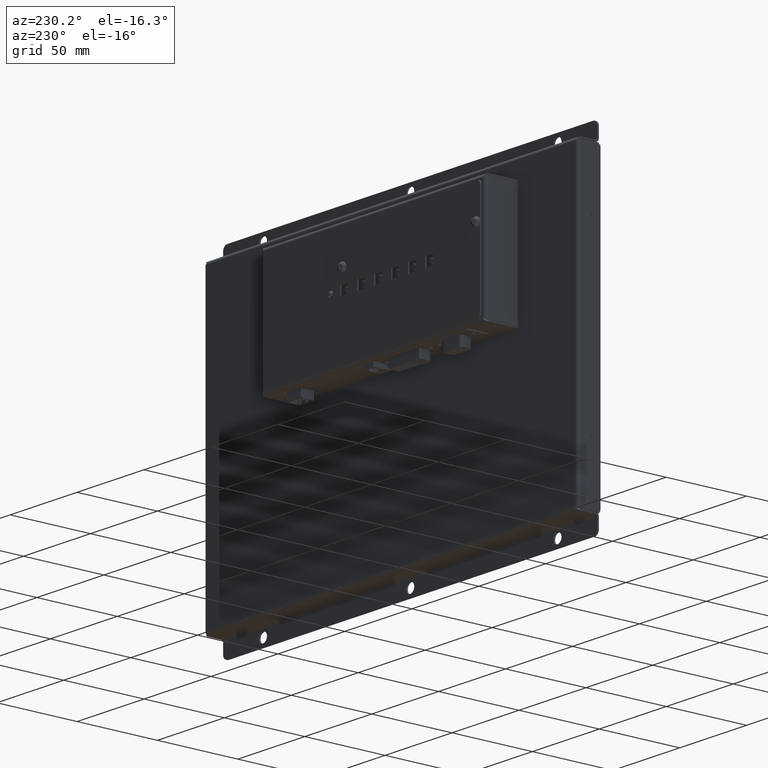
[diagram: clean part render]
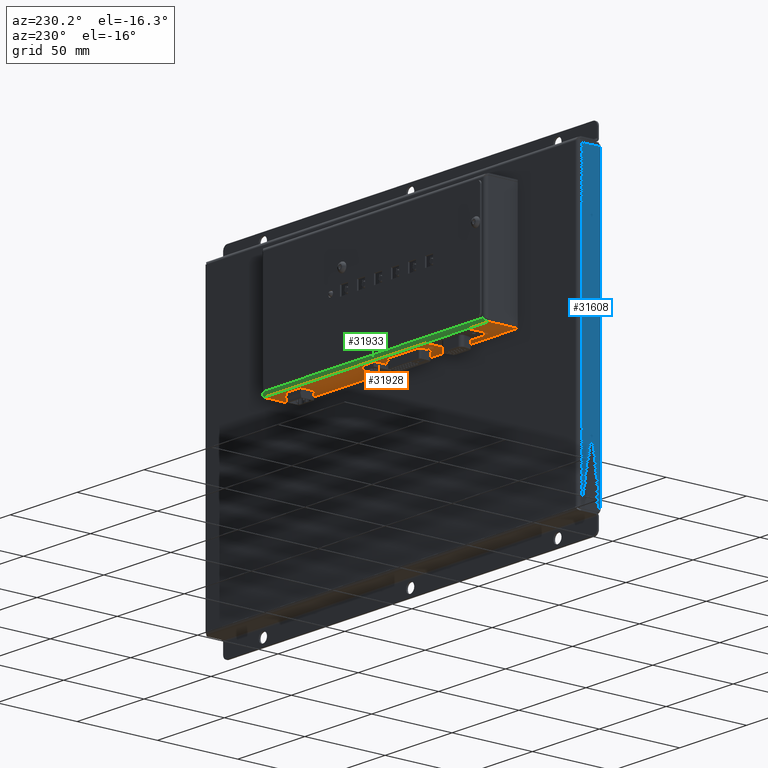
[diagram: same view with three faces highlighted in distinct colors, each labeled with its STEP entity id]
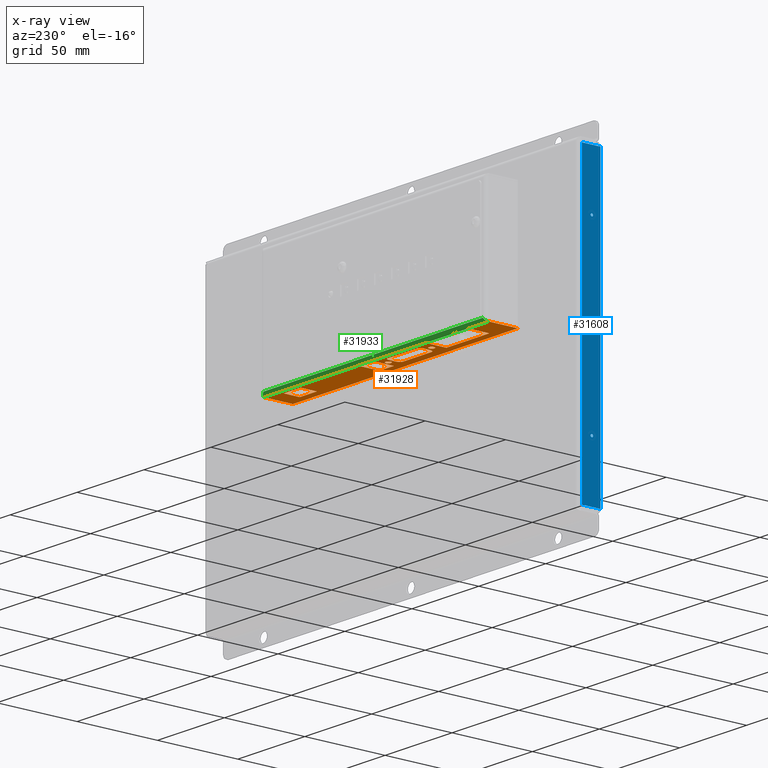
[diagram: x-ray of the same camera — body ghosted, the three highlighted faces saturated]
A machine part, auxiliary view with three faces highlighted in distinct colors.
The next image is the same camera in x-ray (body ghosted, the three faces saturated) — at least one of them is partly hidden behind the body in this view.
Their STEP definitions:

[orange] entity #31928 — the highlighted planar face has unit normal (0, -0, 1).
#842=FACE_BOUND('',#5820,.T.);
#843=FACE_BOUND('',#5821,.T.);
#844=FACE_BOUND('',#5822,.T.);
#845=FACE_BOUND('',#5823,.T.);
#846=FACE_BOUND('',#5824,.T.);
#847=FACE_BOUND('',#5825,.T.);
#1829=PLANE('',#34987);
#3898=FACE_OUTER_BOUND('',#5819,.T.);
#5819=EDGE_LOOP('',(#27745,#27746,#27747,#27748));
#5820=EDGE_LOOP('',(#27749,#27750,#27751,#27752));
#5821=EDGE_LOOP('',(#27753,#27754));
#5822=EDGE_LOOP('',(#27755,#27756));
#5823=EDGE_LOOP('',(#27757,#27758,#27759,#27760));
#5824=EDGE_LOOP('',(#27761,#27762,#27763,#27764));
#5825=EDGE_LOOP('',(#27765,#27766,#27767,#27768,#27769,#27770,#27771,#27772,
#27773,#27774,#27775,#27776));
#8593=LINE('',#53797,#11512);
#8597=LINE('',#53805,#11516);
#8600=LINE('',#53811,#11519);
#8603=LINE('',#53816,#11522);
#8609=LINE('',#53861,#11528);
#8613=LINE('',#53869,#11532);
#8616=LINE('',#53875,#11535);
#8619=LINE('',#53880,#11538);
#8621=LINE('',#53885,#11540);
#8625=LINE('',#53893,#11544);
#8628=LINE('',#53899,#11547);
#8631=LINE('',#53904,#11550);
#8633=LINE('',#53909,#11552);
#8638=LINE('',#53923,#11557);
#8642=LINE('',#53935,#11561);
#8646=LINE('',#53947,#11565);
#8650=LINE('',#53959,#11569);
#8654=LINE('',#53971,#11573);
#8676=LINE('',#54139,#11595);
#8677=LINE('',#54141,#11596);
#8678=LINE('',#54143,#11597);
#8679=LINE('',#54144,#11598);
#11512=VECTOR('',#42411,10.);
#11516=VECTOR('',#42417,10.);
#11519=VECTOR('',#42422,10.);
#11522=VECTOR('',#42427,10.);
#11528=VECTOR('',#42475,10.);
#11532=VECTOR('',#42481,10.);
#11535=VECTOR('',#42486,10.);
#11538=VECTOR('',#42491,10.);
#11540=VECTOR('',#42495,10.);
#11544=VECTOR('',#42501,10.);
#11547=VECTOR('',#42506,10.);
#11550=VECTOR('',#42511,10.);
#11552=VECTOR('',#42515,10.);
#11557=VECTOR('',#42528,10.);
#11561=VECTOR('',#42540,10.);
#11565=VECTOR('',#42552,10.);
#11569=VECTOR('',#42564,10.);
#11573=VECTOR('',#42576,10.);
#11595=VECTOR('',#42618,10.);
#11596=VECTOR('',#42619,10.);
#11597=VECTOR('',#42620,10.);
#11598=VECTOR('',#42621,10.);
#12950=CIRCLE('',#34930,1.7);
#12951=CIRCLE('',#34931,1.7);
#12954=CIRCLE('',#34935,1.7);
#12955=CIRCLE('',#34936,1.7);
#12966=CIRCLE('',#34959,1.79999999997063);
#12968=CIRCLE('',#34963,1.79999999997063);
#12970=CIRCLE('',#34967,1.79999999997063);
#12972=CIRCLE('',#34971,1.79999999997063);
#12974=CIRCLE('',#34975,1.79999999997063);
#12976=CIRCLE('',#34979,1.79999999997063);
#15574=VERTEX_POINT('',#53795);
#15575=VERTEX_POINT('',#53796);
#15578=VERTEX_POINT('',#53804);
#15580=VERTEX_POINT('',#53810);
#15582=VERTEX_POINT('',#53819);
#15583=VERTEX_POINT('',#53820);
#15586=VERTEX_POINT('',#53829);
#15587=VERTEX_POINT('',#53830);
#15598=VERTEX_POINT('',#53859);
#15599=VERTEX_POINT('',#53860);
#15602=VERTEX_POINT('',#53868);
#15604=VERTEX_POINT('',#53874);
#15606=VERTEX_POINT('',#53883);
#15607=VERTEX_POINT('',#53884);
#15610=VERTEX_POINT('',#53892);
#15612=VERTEX_POINT('',#53898);
#15614=VERTEX_POINT('',#53907);
#15615=VERTEX_POINT('',#53908);
#15618=VERTEX_POINT('',#53916);
#15620=VERTEX_POINT('',#53922);
#15622=VERTEX_POINT('',#53928);
#15624=VERTEX_POINT('',#53934);
#15626=VERTEX_POINT('',#53940);
#15628=VERTEX_POINT('',#53946);
#15630=VERTEX_POINT('',#53952);
#15632=VERTEX_POINT('',#53958);
#15634=VERTEX_POINT('',#53964);
#15636=VERTEX_POINT('',#53970);
#15656=VERTEX_POINT('',#54137);
#15657=VERTEX_POINT('',#54138);
#15658=VERTEX_POINT('',#54140);
#15659=VERTEX_POINT('',#54142);
#19664=EDGE_CURVE('',#15574,#15575,#8593,.T.);
#19668=EDGE_CURVE('',#15578,#15574,#8597,.T.);
#19671=EDGE_CURVE('',#15580,#15578,#8600,.T.);
#19674=EDGE_CURVE('',#15575,#15580,#8603,.T.);
#19676=EDGE_CURVE('',#15582,#15583,#12950,.T.);
#19677=EDGE_CURVE('',#15583,#15582,#12951,.T.);
#19681=EDGE_CURVE('',#15586,#15587,#12954,.T.);
#19682=EDGE_CURVE('',#15587,#15586,#12955,.T.);
#19696=EDGE_CURVE('',#15598,#15599,#8609,.T.);
#19700=EDGE_CURVE('',#15602,#15598,#8613,.T.);
#19703=EDGE_CURVE('',#15604,#15602,#8616,.T.);
#19706=EDGE_CURVE('',#15599,#15604,#8619,.T.);
#19708=EDGE_CURVE('',#15606,#15607,#8621,.T.);
#19712=EDGE_CURVE('',#15610,#15606,#8625,.T.);
#19715=EDGE_CURVE('',#15612,#15610,#8628,.T.);
#19718=EDGE_CURVE('',#15607,#15612,#8631,.T.);
#19720=EDGE_CURVE('',#15614,#15615,#8633,.T.);
#19724=EDGE_CURVE('',#15618,#15614,#12966,.T.);
#19727=EDGE_CURVE('',#15620,#15618,#8638,.T.);
#19730=EDGE_CURVE('',#15622,#15620,#12968,.T.);
#19733=EDGE_CURVE('',#15624,#15622,#8642,.T.);
#19736=EDGE_CURVE('',#15626,#15624,#12970,.T.);
#19739=EDGE_CURVE('',#15628,#15626,#8646,.T.);
#19742=EDGE_CURVE('',#15630,#15628,#12972,.T.);
#19745=EDGE_CURVE('',#15632,#15630,#8650,.T.);
#19748=EDGE_CURVE('',#15634,#15632,#12974,.T.);
#19751=EDGE_CURVE('',#15636,#15634,#8654,.T.);
#19754=EDGE_CURVE('',#15615,#15636,#12976,.T.);
#19782=EDGE_CURVE('',#15656,#15657,#8676,.T.);
#19783=EDGE_CURVE('',#15658,#15657,#8677,.T.);
#19784=EDGE_CURVE('',#15659,#15658,#8678,.T.);
#19785=EDGE_CURVE('',#15656,#15659,#8679,.T.);
#27745=ORIENTED_EDGE('',*,*,#19782,.T.);
#27746=ORIENTED_EDGE('',*,*,#19783,.F.);
#27747=ORIENTED_EDGE('',*,*,#19784,.F.);
#27748=ORIENTED_EDGE('',*,*,#19785,.F.);
#27749=ORIENTED_EDGE('',*,*,#19664,.T.);
#27750=ORIENTED_EDGE('',*,*,#19674,.T.);
#27751=ORIENTED_EDGE('',*,*,#19671,.T.);
#27752=ORIENTED_EDGE('',*,*,#19668,.T.);
#27753=ORIENTED_EDGE('',*,*,#19676,.T.);
#27754=ORIENTED_EDGE('',*,*,#19677,.T.);
#27755=ORIENTED_EDGE('',*,*,#19681,.T.);
#27756=ORIENTED_EDGE('',*,*,#19682,.T.);
#27757=ORIENTED_EDGE('',*,*,#19696,.T.);
#27758=ORIENTED_EDGE('',*,*,#19706,.T.);
#27759=ORIENTED_EDGE('',*,*,#19703,.T.);
#27760=ORIENTED_EDGE('',*,*,#19700,.T.);
#27761=ORIENTED_EDGE('',*,*,#19708,.T.);
#27762=ORIENTED_EDGE('',*,*,#19718,.T.);
#27763=ORIENTED_EDGE('',*,*,#19715,.T.);
#27764=ORIENTED_EDGE('',*,*,#19712,.T.);
#27765=ORIENTED_EDGE('',*,*,#19720,.T.);
#27766=ORIENTED_EDGE('',*,*,#19754,.T.);
#27767=ORIENTED_EDGE('',*,*,#19751,.T.);
#27768=ORIENTED_EDGE('',*,*,#19748,.T.);
#27769=ORIENTED_EDGE('',*,*,#19745,.T.);
#27770=ORIENTED_EDGE('',*,*,#19742,.T.);
#27771=ORIENTED_EDGE('',*,*,#19739,.T.);
#27772=ORIENTED_EDGE('',*,*,#19736,.T.);
#27773=ORIENTED_EDGE('',*,*,#19733,.T.);
#27774=ORIENTED_EDGE('',*,*,#19730,.T.);
#27775=ORIENTED_EDGE('',*,*,#19727,.T.);
#27776=ORIENTED_EDGE('',*,*,#19724,.T.);
#31928=ADVANCED_FACE('',(#3898,#842,#843,#844,#845,#846,#847),#1829,.F.);
#34930=AXIS2_PLACEMENT_3D('',#53821,#42431,#42432);
#34931=AXIS2_PLACEMENT_3D('',#53822,#42433,#42434);
#34935=AXIS2_PLACEMENT_3D('',#53831,#42442,#42443);
#34936=AXIS2_PLACEMENT_3D('',#53832,#42444,#42445);
#34959=AXIS2_PLACEMENT_3D('',#53917,#42521,#42522);
#34963=AXIS2_PLACEMENT_3D('',#53929,#42533,#42534);
#34967=AXIS2_PLACEMENT_3D('',#53941,#42545,#42546);
#34971=AXIS2_PLACEMENT_3D('',#53953,#42557,#42558);
#34975=AXIS2_PLACEMENT_3D('',#53965,#42569,#42570);
#34979=AXIS2_PLACEMENT_3D('',#53976,#42581,#42582);
#34987=AXIS2_PLACEMENT_3D('',#54136,#42616,#42617);
#42411=DIRECTION('',(-3.41607084500048E-16,1.74780852069339E-15,1.));
#42417=DIRECTION('',(-1.,-1.94356808492835E-16,1.22514845490862E-16));
#42422=DIRECTION('',(4.04163561191626E-33,-1.74780852069339E-15,-1.));
#42427=DIRECTION('',(1.,1.94356808492835E-16,-3.35656850326634E-31));
#42431=DIRECTION('center_axis',(-1.94356808492835E-16,1.,-1.74780852069339E-15));
#42432=DIRECTION('ref_axis',(1.,1.94356808492835E-16,-3.35656850326634E-31));
#42433=DIRECTION('center_axis',(-1.94356808492835E-16,1.,-1.74780852069339E-15));
#42434=DIRECTION('ref_axis',(1.,1.94356808492835E-16,-3.35656850326634E-31));
#42442=DIRECTION('center_axis',(-1.94356808492835E-16,1.,-1.74780852069339E-15));
#42443=DIRECTION('ref_axis',(1.,1.94356808492835E-16,-3.35656850326634E-31));
#42444=DIRECTION('center_axis',(-1.94356808492835E-16,1.,-1.74780852069339E-15));
#42445=DIRECTION('ref_axis',(1.,1.94356808492835E-16,-3.35656850326634E-31));
#42475=DIRECTION('',(4.04163561191626E-33,-1.74780852069339E-15,-1.));
#42481=DIRECTION('',(1.,1.94356808492836E-16,3.52451753847177E-16));
#42486=DIRECTION('',(-4.04163561191626E-33,1.74780852069339E-15,1.));
#42491=DIRECTION('',(-1.,-1.94356808492835E-16,-1.76225876923588E-16));
#42495=DIRECTION('',(7.40148683083437E-15,1.74780852069339E-15,1.));
#42501=DIRECTION('',(-1.,-1.94356808492821E-16,7.6720600522445E-15));
#42506=DIRECTION('',(-2.96059473233375E-15,-1.74780852069339E-15,-1.));
#42511=DIRECTION('',(1.,1.9435680849282E-16,-8.58851773766624E-15));
#42515=DIRECTION('',(-1.,-1.94356808496081E-16,-1.8572927529593E-12));
#42521=DIRECTION('center_axis',(-1.94356808492835E-16,1.,-1.74780852069339E-15));
#42522=DIRECTION('ref_axis',(-1.86024035684672E-12,1.66533453693773E-15,
1.));
#42528=DIRECTION('',(2.03633514054383E-10,-1.74780852065381E-15,-1.));
#42533=DIRECTION('center_axis',(-1.94356808492835E-16,1.,-1.74780852069339E-15));
#42534=DIRECTION('ref_axis',(-1.,-3.09278670007711E-27,-1.85715640400049E-12));
#42540=DIRECTION('',(0.447213673012302,-1.4763683756301E-15,-0.89442715224374));
#42545=DIRECTION('center_axis',(-1.94356808492835E-16,1.,-1.74780852069339E-15));
#42546=DIRECTION('ref_axis',(-0.89442715224374,-7.44760375058162E-16,-0.4472136730123));
#42552=DIRECTION('',(1.,1.94356808496081E-16,1.85748235760231E-12));
#42557=DIRECTION('center_axis',(-1.94356808492835E-16,1.,-1.74780852069339E-15));
#42558=DIRECTION('ref_axis',(1.85530603229275E-12,-1.66533453693773E-15,
-1.));
#42564=DIRECTION('',(0.447213595496917,1.65020647270755E-15,0.894427191001437));
#42569=DIRECTION('center_axis',(-1.94356808492835E-16,1.,-1.74780852069339E-15));
#42570=DIRECTION('ref_axis',(0.894427191001434,-7.44760245969126E-16,-0.447213595496922));
#42576=DIRECTION('',(-1.85566253275408E-12,1.74780852069303E-15,1.));
#42581=DIRECTION('center_axis',(-1.94356808492835E-16,1.,-1.74780852069339E-15));
#42582=DIRECTION('ref_axis',(1.,3.09278670007711E-27,1.85715640400048E-12));
#42616=DIRECTION('center_axis',(-1.94356808492835E-16,1.,-1.74780852069339E-15));
#42617=DIRECTION('ref_axis',(1.,1.94356808492835E-16,1.32169407693471E-16));
#42618=DIRECTION('',(1.,1.94356808492835E-16,-1.06659134667663E-31));
#42619=DIRECTION('',(-7.72105202801893E-15,-4.84414241523454E-15,-1.));
#42620=DIRECTION('',(1.,2.11471052309554E-16,2.64338815386941E-17));
#42621=DIRECTION('',(-2.2186712959341E-31,1.71512449944288E-15,1.));
#53795=CARTESIAN_POINT('',(-68.6749999999858,-37.,2.0200000000709));
#53796=CARTESIAN_POINT('',(-68.6749999999858,-37.,15.0200000000709));
#53797=CARTESIAN_POINT('',(-68.6749999999858,-37.,5.94451332238927));
#53804=CARTESIAN_POINT('',(-36.6749999999858,-37.,2.02000000007089));
#53805=CARTESIAN_POINT('',(-18.3374999999929,-37.,2.02000000007089));
#53810=CARTESIAN_POINT('',(-36.6749999999858,-37.,15.0200000000709));
#53811=CARTESIAN_POINT('',(-36.6749999999858,-37.,12.4445133223893));
#53816=CARTESIAN_POINT('',(-34.3374999999929,-37.,15.0200000000709));
#53819=CARTESIAN_POINT('',(1.9749999972605,-37.,9.60000000003014));
#53820=CARTESIAN_POINT('',(-1.4250000027395,-37.,9.60000000003014));
#53821=CARTESIAN_POINT('Origin',(0.274999997260501,-37.,9.60000000003014));
#53822=CARTESIAN_POINT('Origin',(0.274999997260501,-37.,9.60000000003014));
#53829=CARTESIAN_POINT('',(-30.4750000027398,-37.,9.59999999996987));
#53830=CARTESIAN_POINT('',(-33.8750000027398,-37.,9.59999999996987));
#53831=CARTESIAN_POINT('Origin',(-32.1750000027398,-37.,9.59999999996987));
#53832=CARTESIAN_POINT('Origin',(-32.1750000027398,-37.,9.59999999996987));
#53859=CARTESIAN_POINT('',(72.8000000000382,-37.,15.0000000000358));
#53860=CARTESIAN_POINT('',(72.8000000000382,-37.,4.99999999996151));
#53861=CARTESIAN_POINT('',(72.8000000000382,-37.,12.4345133223717));
#53868=CARTESIAN_POINT('',(60.1999999999639,-37.,15.0000000000358));
#53869=CARTESIAN_POINT('',(30.0999999999819,-37.,15.0000000000358));
#53874=CARTESIAN_POINT('',(60.1999999999639,-37.,4.99999999996151));
#53875=CARTESIAN_POINT('',(60.1999999999639,-37.,7.43451332233459));
#53880=CARTESIAN_POINT('',(36.4000000000191,-37.,4.9999999999615));
#53883=CARTESIAN_POINT('',(3.20000000000061,-37.,3.49999999999914));
#53884=CARTESIAN_POINT('',(3.2000000000007,-37.,15.4999999999992));
#53885=CARTESIAN_POINT('',(3.20000000000063,-37.,6.68451332235339));
#53892=CARTESIAN_POINT('',(13.8000000000007,-37.,3.49999999999906));
#53893=CARTESIAN_POINT('',(6.90000000000035,-37.,3.49999999999911));
#53898=CARTESIAN_POINT('',(13.8000000000008,-37.,15.4999999999991));
#53899=CARTESIAN_POINT('',(13.8000000000008,-37.,12.6845133223534));
#53904=CARTESIAN_POINT('',(1.60000000000038,-37.,15.4999999999992));
#53907=CARTESIAN_POINT('',(-4.93500000178011,-37.,5.));
#53908=CARTESIAN_POINT('',(-26.965000002772,-37.,4.99999999995909));
#53909=CARTESIAN_POINT('',(-2.46750000088553,-37.,5.00000000000459));
#53916=CARTESIAN_POINT('',(-3.13500000181284,-37.,6.79999999997398));
#53917=CARTESIAN_POINT('Origin',(-4.93500000178346,-37.,6.79999999997064));
#53922=CARTESIAN_POINT('',(-3.13500000273681,-37.,11.337426043544));
#53923=CARTESIAN_POINT('',(-3.1350000025873,-37.,10.6032263438066));
#53928=CARTESIAN_POINT('',(-3.32503112869498,-37.,12.1424106549497));
#53929=CARTESIAN_POINT('Origin',(-4.93500000270744,-37.,11.3374260435407));
#53934=CARTESIAN_POINT('',(-3.8563182220134,-37.,13.204984611376));
#53935=CARTESIAN_POINT('',(-2.80349458607108,-37.,11.0993377956874));
#53940=CARTESIAN_POINT('',(-5.46628709602921,-37.,14.1999999999377));
#53941=CARTESIAN_POINT('Origin',(-5.46628709602587,-37.,12.399999999967));
#53946=CARTESIAN_POINT('',(-26.4337130015565,-37.,14.1999999998987));
#53947=CARTESIAN_POINT('',(-13.2168565007822,-37.,14.1999999999233));
#53952=CARTESIAN_POINT('',(-28.0436819453295,-37.,13.2049844718094));
#53953=CARTESIAN_POINT('Origin',(-26.4337130015531,-37.,12.3999999999281));
#53958=CARTESIAN_POINT('',(-28.5749689465601,-37.,12.1424104693391));
#53959=CARTESIAN_POINT('',(-26.1721488168669,-37.,16.9480507287663));
#53964=CARTESIAN_POINT('',(-28.7650000027544,-37.,11.3374259974545));
#53965=CARTESIAN_POINT('Origin',(-26.9650000027838,-37.,11.3374259974578));
#53970=CARTESIAN_POINT('',(-28.765000002746,-37.,6.79999999992638));
#53971=CARTESIAN_POINT('',(-28.7650000027488,-37.,8.33451332229034));
#53976=CARTESIAN_POINT('Origin',(-26.9650000027753,-37.,6.79999999992972));
#54136=CARTESIAN_POINT('Origin',(1.5578679437037E-14,-37.,9.86902664470767));
#54137=CARTESIAN_POINT('',(-84.,-37.,2.00000000000001));
#54138=CARTESIAN_POINT('',(84.,-37.,2.00000000000001));
#54139=CARTESIAN_POINT('',(1.6820705795437E-14,-37.,2.));
#54140=CARTESIAN_POINT('',(84.,-37.,20.));
#54141=CARTESIAN_POINT('',(84.,-37.,-0.261946710584642));
#54142=CARTESIAN_POINT('',(-84.,-37.,20.));
#54143=CARTESIAN_POINT('',(-84.,-37.,20.));
#54144=CARTESIAN_POINT('',(-84.,-37.,2.));

[blue] entity #31608 — the highlighted planar face has unit normal (-1, -0, 0).
#797=FACE_BOUND('',#5455,.T.);
#798=FACE_BOUND('',#5456,.T.);
#1651=PLANE('',#34360);
#3578=FACE_OUTER_BOUND('',#5454,.T.);
#5454=EDGE_LOOP('',(#26559,#26560,#26561,#26562));
#5455=EDGE_LOOP('',(#26563,#26564));
#5456=EDGE_LOOP('',(#26565,#26566));
#8343=LINE('',#51777,#11262);
#8382=LINE('',#51903,#11301);
#8383=LINE('',#51906,#11302);
#8391=LINE('',#51927,#11310);
#11262=VECTOR('',#40943,10.);
#11301=VECTOR('',#41060,10.);
#11302=VECTOR('',#41063,10.);
#11310=VECTOR('',#41079,10.);
#12647=CIRCLE('',#34341,0.7835);
#12648=CIRCLE('',#34342,0.7835);
#12651=CIRCLE('',#34347,0.7835);
#12652=CIRCLE('',#34348,0.7835);
#15178=VERTEX_POINT('',#51763);
#15184=VERTEX_POINT('',#51775);
#15212=VERTEX_POINT('',#51855);
#15213=VERTEX_POINT('',#51856);
#15217=VERTEX_POINT('',#51868);
#15218=VERTEX_POINT('',#51869);
#15231=VERTEX_POINT('',#51899);
#15233=VERTEX_POINT('',#51905);
#19091=EDGE_CURVE('',#15184,#15178,#8343,.T.);
#19128=EDGE_CURVE('',#15212,#15213,#12647,.T.);
#19129=EDGE_CURVE('',#15213,#15212,#12648,.T.);
#19134=EDGE_CURVE('',#15217,#15218,#12651,.T.);
#19135=EDGE_CURVE('',#15218,#15217,#12652,.T.);
#19151=EDGE_CURVE('',#15178,#15231,#8382,.T.);
#19152=EDGE_CURVE('',#15231,#15233,#8383,.T.);
#19163=EDGE_CURVE('',#15233,#15184,#8391,.T.);
#26559=ORIENTED_EDGE('',*,*,#19151,.F.);
#26560=ORIENTED_EDGE('',*,*,#19091,.F.);
#26561=ORIENTED_EDGE('',*,*,#19163,.F.);
#26562=ORIENTED_EDGE('',*,*,#19152,.F.);
#26563=ORIENTED_EDGE('',*,*,#19128,.T.);
#26564=ORIENTED_EDGE('',*,*,#19129,.T.);
#26565=ORIENTED_EDGE('',*,*,#19134,.T.);
#26566=ORIENTED_EDGE('',*,*,#19135,.T.);
#31608=ADVANCED_FACE('',(#3578,#797,#798),#1651,.T.);
#34341=AXIS2_PLACEMENT_3D('',#51857,#41018,#41019);
#34342=AXIS2_PLACEMENT_3D('',#51858,#41020,#41021);
#34347=AXIS2_PLACEMENT_3D('',#51870,#41032,#41033);
#34348=AXIS2_PLACEMENT_3D('',#51871,#41034,#41035);
#34360=AXIS2_PLACEMENT_3D('',#51926,#41077,#41078);
#40943=DIRECTION('',(9.62795034905284E-17,1.,0.));
#41018=DIRECTION('center_axis',(1.,-9.62795034905285E-17,0.));
#41019=DIRECTION('ref_axis',(0.,0.,1.));
#41020=DIRECTION('center_axis',(1.,-9.62795034905285E-17,0.));
#41021=DIRECTION('ref_axis',(0.,0.,1.));
#41032=DIRECTION('center_axis',(1.,-9.62795034905285E-17,0.));
#41033=DIRECTION('ref_axis',(0.,0.,1.));
#41034=DIRECTION('center_axis',(1.,-9.62795034905285E-17,0.));
#41035=DIRECTION('ref_axis',(0.,0.,1.));
#41060=DIRECTION('',(0.,0.,1.));
#41063=DIRECTION('',(0.,-1.,0.));
#41077=DIRECTION('center_axis',(-1.,9.62795034905285E-17,0.));
#41078=DIRECTION('ref_axis',(-9.62795034905284E-17,-1.,0.));
#41079=DIRECTION('',(0.,0.,-1.));
#51763=CARTESIAN_POINT('',(-139.25,90.2499999999999,0.));
#51775=CARTESIAN_POINT('',(-139.25,-90.2500000000001,0.));
#51777=CARTESIAN_POINT('',(-139.25,-92.2500000000001,0.));
#51855=CARTESIAN_POINT('',(-139.25,55.25,6.8835));
#51856=CARTESIAN_POINT('',(-139.25,55.25,5.3165));
#51857=CARTESIAN_POINT('Origin',(-139.25,55.25,6.1));
#51858=CARTESIAN_POINT('Origin',(-139.25,55.25,6.1));
#51868=CARTESIAN_POINT('',(-139.25,-54.75,6.8835));
#51869=CARTESIAN_POINT('',(-139.25,-54.75,5.3165));
#51870=CARTESIAN_POINT('Origin',(-139.25,-54.75,6.1));
#51871=CARTESIAN_POINT('Origin',(-139.25,-54.75,6.1));
#51899=CARTESIAN_POINT('',(-139.25,90.25,11.5));
#51903=CARTESIAN_POINT('',(-139.25,90.25,0.));
#51905=CARTESIAN_POINT('',(-139.25,-90.2500000000001,11.5));
#51906=CARTESIAN_POINT('',(-139.25,92.25,11.5));
#51926=CARTESIAN_POINT('Origin',(-139.25,92.25,0.));
#51927=CARTESIAN_POINT('',(-139.25,-90.2500000000001,0.));

[green] entity #31933 — the highlighted cylindrical surface (edge-blend (fillet) strip) has radius 2 mm, axis along (-1, 0, 0).
#565=B_SPLINE_CURVE_WITH_KNOTS('',3,(#54234,#54235,#54236,#54237,#54238,
#54239,#54240),.UNSPECIFIED.,.F.,.F.,(4,3,4),(-1.,-0.57142857142857,0.),
 .UNSPECIFIED.);
#566=B_SPLINE_CURVE_WITH_KNOTS('',3,(#54242,#54243,#54244,#54245,#54246,
#54247,#54248),.UNSPECIFIED.,.F.,.F.,(4,3,4),(-0.999999999999995,-0.428571428571425,
0.),.UNSPECIFIED.);
#2365=CYLINDRICAL_SURFACE('',#34991,2.);
#3903=FACE_OUTER_BOUND('',#5830,.T.);
#5830=EDGE_LOOP('',(#27792,#27793,#27794,#27795));
#8676=LINE('',#54139,#11595);
#8685=LINE('',#54249,#11604);
#11595=VECTOR('',#42618,10.);
#11604=VECTOR('',#42635,10.);
#15656=VERTEX_POINT('',#54137);
#15657=VERTEX_POINT('',#54138);
#15665=VERTEX_POINT('',#54233);
#15666=VERTEX_POINT('',#54241);
#19782=EDGE_CURVE('',#15656,#15657,#8676,.T.);
#19795=EDGE_CURVE('',#15657,#15665,#565,.T.);
#19796=EDGE_CURVE('',#15656,#15666,#566,.T.);
#19797=EDGE_CURVE('',#15665,#15666,#8685,.T.);
#27792=ORIENTED_EDGE('',*,*,#19795,.F.);
#27793=ORIENTED_EDGE('',*,*,#19782,.F.);
#27794=ORIENTED_EDGE('',*,*,#19796,.T.);
#27795=ORIENTED_EDGE('',*,*,#19797,.F.);
#31933=ADVANCED_FACE('',(#3903),#2365,.T.);
#34991=AXIS2_PLACEMENT_3D('',#54232,#42633,#42634);
#42618=DIRECTION('',(1.,1.94356808492835E-16,-1.06659134667663E-31));
#42633=DIRECTION('center_axis',(-1.,-1.32169407693471E-16,0.));
#42634=DIRECTION('ref_axis',(0.,-7.09991571085998E-17,-1.));
#42635=DIRECTION('',(-1.,-1.05735526154777E-16,0.));
#54137=CARTESIAN_POINT('',(-84.,-37.,2.00000000000001));
#54138=CARTESIAN_POINT('',(84.,-37.,2.00000000000001));
#54139=CARTESIAN_POINT('',(1.6820705795437E-14,-37.,2.));
#54232=CARTESIAN_POINT('Origin',(-41.,-35.,2.));
#54233=CARTESIAN_POINT('',(82.,-35.,0.));
#54234=CARTESIAN_POINT('Ctrl Pts',(84.0000000000001,-37.,1.99999999999999));
#54235=CARTESIAN_POINT('Ctrl Pts',(83.7142857142817,-37.,1.55120104948724));
#54236=CARTESIAN_POINT('Ctrl Pts',(83.4285714285697,-36.8433285229456,1.10157688079537));
#54237=CARTESIAN_POINT('Ctrl Pts',(83.1428571428556,-36.5635098916553,0.752430378219279));
#54238=CARTESIAN_POINT('Ctrl Pts',(82.7619047619034,-36.1904183832682,0.286901708117831));
#54239=CARTESIAN_POINT('Ctrl Pts',(82.3809523809473,-35.5983986006838,5.60752902000579E-15));
#54240=CARTESIAN_POINT('Ctrl Pts',(82.0000000000002,-35.,2.35922392732848E-15));
#54241=CARTESIAN_POINT('',(-82.,-35.,-1.38777878078145E-16));
#54242=CARTESIAN_POINT('Ctrl Pts',(-83.9999999999999,-37.,1.99999999999998));
#54243=CARTESIAN_POINT('Ctrl Pts',(-83.6190476190481,-37.,1.40160139931611));
#54244=CARTESIAN_POINT('Ctrl Pts',(-83.2380952380958,-36.7130982918822,
0.809581616731775));
#54245=CARTESIAN_POINT('Ctrl Pts',(-82.8571428571435,-36.2475696217807,
0.436490108344685));
#54246=CARTESIAN_POINT('Ctrl Pts',(-82.5714285714292,-35.8984231192047,
0.156671477054369));
#54247=CARTESIAN_POINT('Ctrl Pts',(-82.285714285715,-35.4487989505128,3.05535989352861E-15));
#54248=CARTESIAN_POINT('Ctrl Pts',(-81.9999999999999,-35.,2.35922392732846E-15));
#54249=CARTESIAN_POINT('',(42.,-35.,0.));